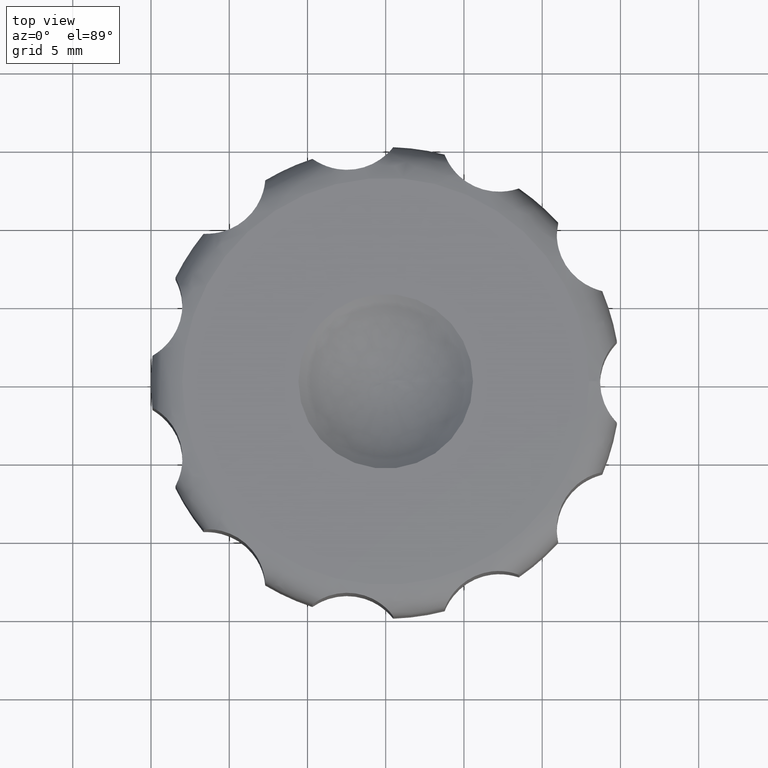
[diagram: clean part render]
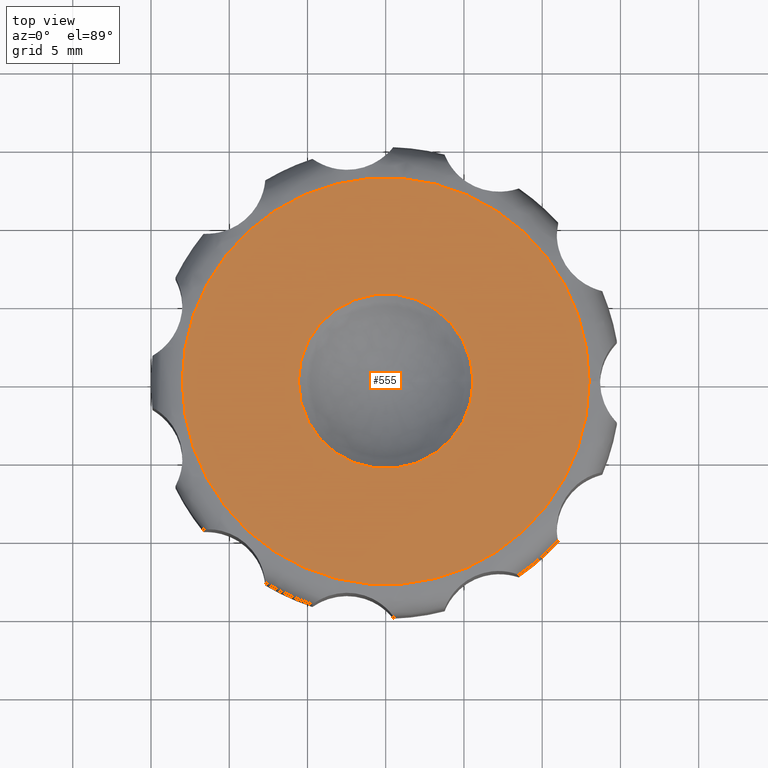
[diagram: same view with one face highlighted and labeled with its STEP entity id]
A machine part, top view. The second image highlights one B-rep face of the part: STEP entity #555.
In plain terms, the highlighted planar face has unit normal (0, 0, 1).
Its self-contained STEP definition (entity closure, byte-faithful):
#510=CARTESIAN_POINT('',(-18.000000586961747,-18.000000586995498,12.500000000000000));
#511=DIRECTION('',(0.0,0.0,1.0));
#512=DIRECTION('',(1.0,0.0,0.0));
#513=AXIS2_PLACEMENT_3D('',#510,#511,#512);
#514=PLANE('',#513);
#515=CARTESIAN_POINT('',(13.0,0.0,12.500000000000000));
#516=VERTEX_POINT('',#515);
#517=CARTESIAN_POINT('',(-13.0,0.0,12.500000000000000));
#518=VERTEX_POINT('',#517);
#519=CARTESIAN_POINT('',(0.0,0.0,12.500000000000000));
#520=DIRECTION('',(0.0,0.0,1.0));
#521=DIRECTION('',(1.0,0.0,0.0));
#522=AXIS2_PLACEMENT_3D('',#519,#520,#521);
#523=CIRCLE('',#522,13.0);
#524=EDGE_CURVE('',#516,#518,#523,.T.);
#525=ORIENTED_EDGE('',*,*,#524,.T.);
#526=CARTESIAN_POINT('',(0.0,0.0,12.500000000000000));
#527=DIRECTION('',(0.0,0.0,1.0));
#528=DIRECTION('',(1.0,0.0,0.0));
#529=AXIS2_PLACEMENT_3D('',#526,#527,#528);
#530=CIRCLE('',#529,13.0);
#531=EDGE_CURVE('',#518,#516,#530,.T.);
#532=ORIENTED_EDGE('',*,*,#531,.T.);
#533=EDGE_LOOP('',(#525,#532));
#534=FACE_OUTER_BOUND('',#533,.T.);
#535=CARTESIAN_POINT('',(-5.580343384734768,0.0,12.500000000000000));
#536=VERTEX_POINT('',#535);
#537=CARTESIAN_POINT('',(5.580343384734768,0.0,12.500000000000000));
#538=VERTEX_POINT('',#537);
#539=CARTESIAN_POINT('',(0.0,0.0,12.500000000000000));
#540=DIRECTION('',(0.0,0.0,1.0));
#541=DIRECTION('',(1.0,0.0,0.0));
#542=AXIS2_PLACEMENT_3D('',#539,#540,#541);
#543=CIRCLE('',#542,5.580343384734768);
#544=EDGE_CURVE('',#536,#538,#543,.T.);
#545=ORIENTED_EDGE('',*,*,#544,.F.);
#546=CARTESIAN_POINT('',(0.0,0.0,12.500000000000000));
#547=DIRECTION('',(0.0,0.0,1.0));
#548=DIRECTION('',(1.0,0.0,0.0));
#549=AXIS2_PLACEMENT_3D('',#546,#547,#548);
#550=CIRCLE('',#549,5.580343384734768);
#551=EDGE_CURVE('',#538,#536,#550,.T.);
#552=ORIENTED_EDGE('',*,*,#551,.F.);
#553=EDGE_LOOP('',(#545,#552));
#554=FACE_BOUND('',#553,.T.);
#555=ADVANCED_FACE('',(#534,#554),#514,.T.);